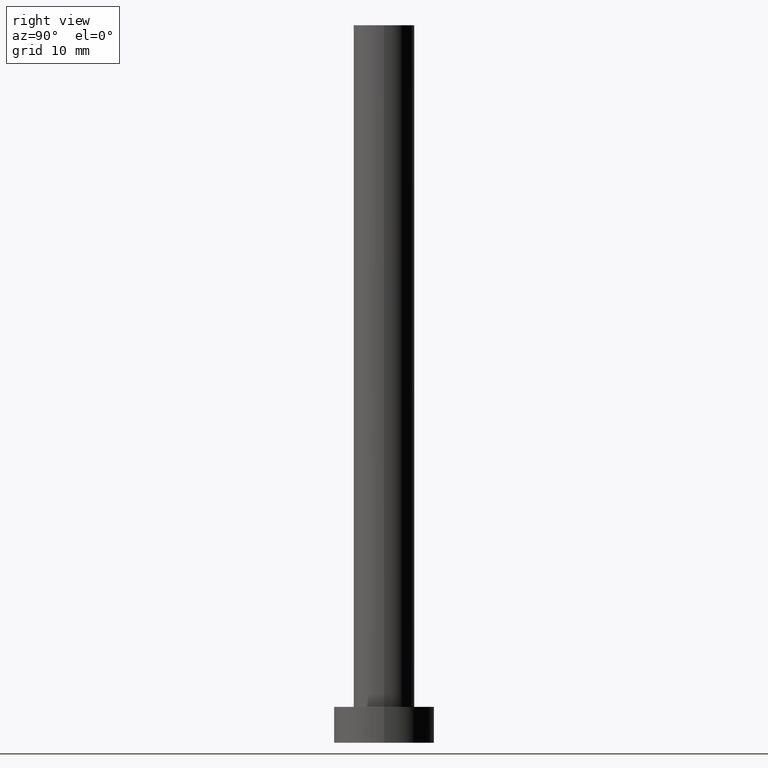
[diagram: clean part render]
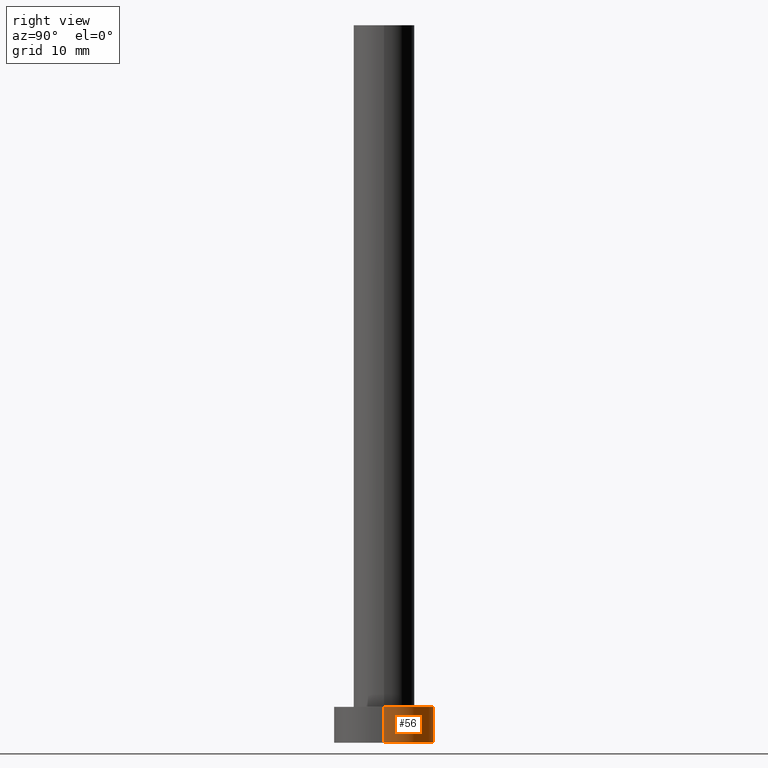
[diagram: same view with one face highlighted and labeled with its STEP entity id]
A machine part, right view. The second image highlights one B-rep face of the part: STEP entity #56.
In plain terms, the highlighted cylindrical surface (partial cylindrical patch) has radius 7 mm, axis along (-0, -0, -1).
Its self-contained STEP definition (entity closure, byte-faithful):
#1 = LINE ( 'NONE', #126, #28 ) ;
#12 = CARTESIAN_POINT ( 'NONE',  ( 7.000000000000000000, 8.572527594031473190E-16, 0.000000000000000000 ) ) ;
#16 = CIRCLE ( 'NONE', #54, 7.000000000000000000 ) ;
#20 = EDGE_LOOP ( 'NONE', ( #218, #133, #178, #80 ) ) ;
#28 = VECTOR ( 'NONE', #84, 1000.000000000000000 ) ;
#29 = DIRECTION ( 'NONE',  ( 1.000000000000000000, 0.000000000000000000, 0.000000000000000000 ) ) ;
#38 = VERTEX_POINT ( 'NONE', #12 ) ;
#54 = AXIS2_PLACEMENT_3D ( 'NONE', #216, #183, #102 ) ;
#56 = ADVANCED_FACE ( 'NONE', ( #173 ), #150, .T. ) ;
#57 = AXIS2_PLACEMENT_3D ( 'NONE', #203, #241, #225 ) ;
#63 = CARTESIAN_POINT ( 'NONE',  ( -7.000000000000000000, 0.000000000000000000, 0.000000000000000000 ) ) ;
#71 = DIRECTION ( 'NONE',  ( -0.000000000000000000, -0.000000000000000000, -1.000000000000000000 ) ) ;
#80 = ORIENTED_EDGE ( 'NONE', *, *, #103, .F. ) ;
#84 = DIRECTION ( 'NONE',  ( -0.000000000000000000, -0.000000000000000000, -1.000000000000000000 ) ) ;
#91 = LINE ( 'NONE', #250, #141 ) ;
#96 = EDGE_CURVE ( 'NONE', #38, #171, #213, .T. ) ;
#102 = DIRECTION ( 'NONE',  ( 1.000000000000000000, 0.000000000000000000, 0.000000000000000000 ) ) ;
#103 = EDGE_CURVE ( 'NONE', #255, #171, #91, .T. ) ;
#121 = CARTESIAN_POINT ( 'NONE',  ( 7.000000000000000000, 8.572527594031473190E-16, 5.000000000000000000 ) ) ;
#126 = CARTESIAN_POINT ( 'NONE',  ( 7.000000000000000000, 8.572527594031473190E-16, 5.000000000000000000 ) ) ;
#129 = CARTESIAN_POINT ( 'NONE',  ( 0.000000000000000000, 0.000000000000000000, 0.000000000000000000 ) ) ;
#133 = ORIENTED_EDGE ( 'NONE', *, *, #157, .T. ) ;
#137 = AXIS2_PLACEMENT_3D ( 'NONE', #129, #154, #29 ) ;
#141 = VECTOR ( 'NONE', #71, 1000.000000000000000 ) ;
#150 = CYLINDRICAL_SURFACE ( 'NONE', #57, 7.000000000000000000 ) ;
#154 = DIRECTION ( 'NONE',  ( 0.000000000000000000, 0.000000000000000000, 1.000000000000000000 ) ) ;
#157 = EDGE_CURVE ( 'NONE', #229, #38, #1, .T. ) ;
#165 = CARTESIAN_POINT ( 'NONE',  ( -7.000000000000000000, 0.000000000000000000, 5.000000000000000000 ) ) ;
#171 = VERTEX_POINT ( 'NONE', #63 ) ;
#173 = FACE_OUTER_BOUND ( 'NONE', #20, .T. ) ;
#178 = ORIENTED_EDGE ( 'NONE', *, *, #96, .T. ) ;
#183 = DIRECTION ( 'NONE',  ( 0.000000000000000000, 0.000000000000000000, 1.000000000000000000 ) ) ;
#203 = CARTESIAN_POINT ( 'NONE',  ( 0.000000000000000000, 0.000000000000000000, 5.000000000000000000 ) ) ;
#213 = CIRCLE ( 'NONE', #137, 7.000000000000000000 ) ;
#215 = EDGE_CURVE ( 'NONE', #229, #255, #16, .T. ) ;
#216 = CARTESIAN_POINT ( 'NONE',  ( 0.000000000000000000, 0.000000000000000000, 5.000000000000000000 ) ) ;
#218 = ORIENTED_EDGE ( 'NONE', *, *, #215, .F. ) ;
#225 = DIRECTION ( 'NONE',  ( -1.000000000000000000, 0.000000000000000000, 0.000000000000000000 ) ) ;
#229 = VERTEX_POINT ( 'NONE', #121 ) ;
#241 = DIRECTION ( 'NONE',  ( -0.000000000000000000, -0.000000000000000000, -1.000000000000000000 ) ) ;
#250 = CARTESIAN_POINT ( 'NONE',  ( -7.000000000000000000, 0.000000000000000000, 5.000000000000000000 ) ) ;
#255 = VERTEX_POINT ( 'NONE', #165 ) ;